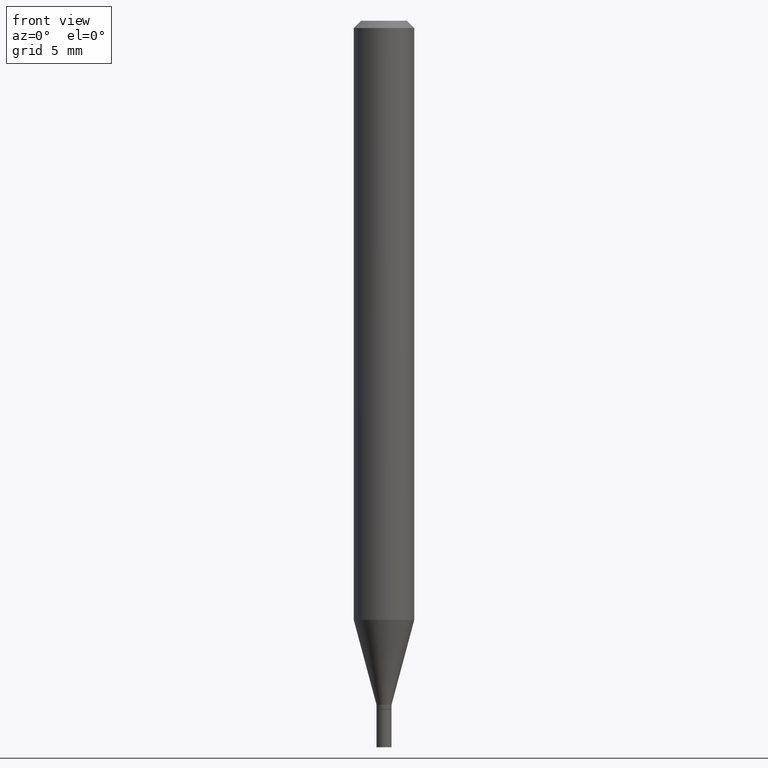
[diagram: clean part render]
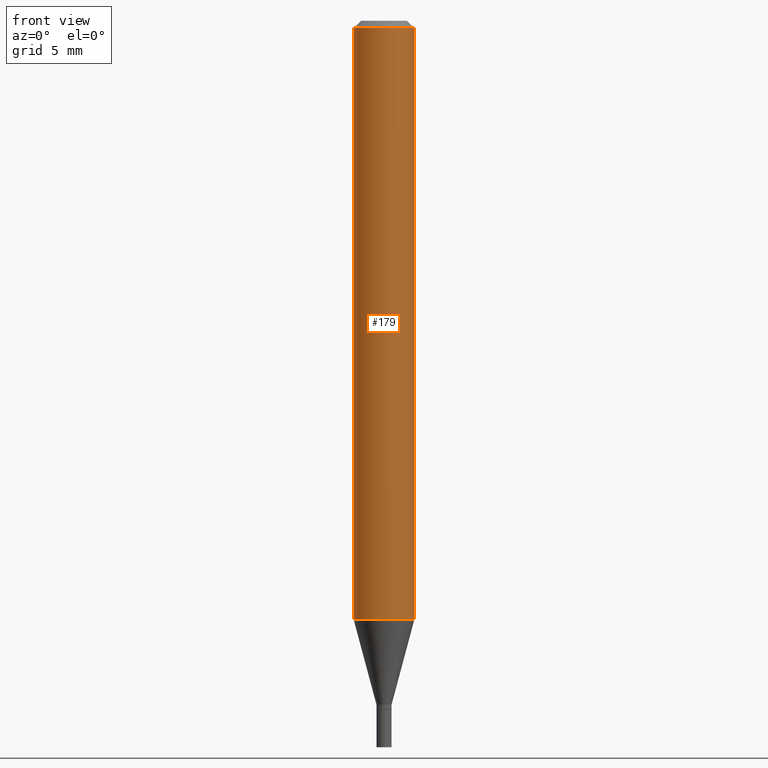
[diagram: same view with one face highlighted and labeled with its STEP entity id]
A machine part, front view. The second image highlights one B-rep face of the part: STEP entity #179.
In plain terms, the highlighted cylindrical surface (edge-blend (fillet) strip) has radius 1.5875 mm, axis along (-0, 0, 1).
Its self-contained STEP definition (entity closure, byte-faithful):
#17 = CYLINDRICAL_SURFACE ( 'NONE', #153, 0.06250000000000001388 ) ;
#39 = VERTEX_POINT ( 'NONE', #313 ) ;
#52 = VECTOR ( 'NONE', #277, 39.37007874015748143 ) ;
#58 = VERTEX_POINT ( 'NONE', #204 ) ;
#78 = CARTESIAN_POINT ( 'NONE',  ( 3.024963765565350895E-29, -4.318846558760209820E-15, -1.236966817125020102 ) ) ;
#87 = LINE ( 'NONE', #98, #434 ) ;
#89 = CARTESIAN_POINT ( 'NONE',  ( -0.06250000000000001388, 4.440892098500627148E-16, -3.074334431409316814E-30 ) ) ;
#98 = CARTESIAN_POINT ( 'NONE',  ( 0.06250000000000001388, -4.364351673553917187E-16, 3.047610484872460221E-30 ) ) ;
#100 = EDGE_LOOP ( 'NONE', ( #293, #175, #427, #436 ) ) ;
#126 = DIRECTION ( 'NONE',  ( -2.445468806185136597E-29, 3.491481338843145583E-15, 1.000000000000000000 ) ) ;
#153 = AXIS2_PLACEMENT_3D ( 'NONE', #162, #126, #224 ) ;
#162 = CARTESIAN_POINT ( 'NONE',  ( 0.000000000000000000, 0.000000000000000000, 0.000000000000000000 ) ) ;
#174 = DIRECTION ( 'NONE',  ( -2.445468806185136597E-29, 3.491481338843145583E-15, 1.000000000000000000 ) ) ;
#175 = ORIENTED_EDGE ( 'NONE', *, *, #303, .T. ) ;
#179 = ADVANCED_FACE ( 'NONE', ( #342 ), #17, .T. ) ;
#184 = DIRECTION ( 'NONE',  ( 1.000000000000000000, -6.982962677686262766E-15, 0.000000000000000000 ) ) ;
#193 = DIRECTION ( 'NONE',  ( -2.445468806185136877E-29, 3.491481338843145188E-15, 1.000000000000000000 ) ) ;
#201 = VERTEX_POINT ( 'NONE', #230 ) ;
#204 = CARTESIAN_POINT ( 'NONE',  ( -0.06250000000000002776, -1.741520179571366031E-15, -0.01499999999999999944 ) ) ;
#212 = LINE ( 'NONE', #89, #52 ) ;
#224 = DIRECTION ( 'NONE',  ( 1.000000000000000000, -6.982962677686265922E-15, 4.876176775795935232E-29 ) ) ;
#229 = EDGE_CURVE ( 'NONE', #39, #241, #87, .T. ) ;
#230 = CARTESIAN_POINT ( 'NONE',  ( -0.06250000000000000000, -3.874757348910146415E-15, -1.236966817125020102 ) ) ;
#241 = VERTEX_POINT ( 'NONE', #296 ) ;
#266 = CIRCLE ( 'NONE', #328, 0.06250000000000000000 ) ;
#271 = AXIS2_PLACEMENT_3D ( 'NONE', #282, #174, #460 ) ;
#277 = DIRECTION ( 'NONE',  ( -2.445468806185136877E-29, 3.491481338843145188E-15, 1.000000000000000000 ) ) ;
#282 = CARTESIAN_POINT ( 'NONE',  ( 3.668203209277705088E-31, -5.237222008264718399E-17, -0.01499999999999999944 ) ) ;
#290 = CIRCLE ( 'NONE', #271, 0.06250000000000001388 ) ;
#293 = ORIENTED_EDGE ( 'NONE', *, *, #337, .F. ) ;
#296 = CARTESIAN_POINT ( 'NONE',  ( 0.06250000000000001388, -4.888073874380389458E-16, -0.01499999999999999944 ) ) ;
#303 = EDGE_CURVE ( 'NONE', #201, #39, #266, .T. ) ;
#313 = CARTESIAN_POINT ( 'NONE',  ( 0.06250000000000000000, -4.755281726115601490E-15, -1.236966817125020102 ) ) ;
#328 = AXIS2_PLACEMENT_3D ( 'NONE', #78, #415, #184 ) ;
#337 = EDGE_CURVE ( 'NONE', #201, #58, #212, .T. ) ;
#342 = FACE_OUTER_BOUND ( 'NONE', #100, .T. ) ;
#415 = DIRECTION ( 'NONE',  ( -2.445468806185136597E-29, 3.491481338843145583E-15, 1.000000000000000000 ) ) ;
#427 = ORIENTED_EDGE ( 'NONE', *, *, #229, .T. ) ;
#434 = VECTOR ( 'NONE', #193, 39.37007874015748143 ) ;
#436 = ORIENTED_EDGE ( 'NONE', *, *, #439, .F. ) ;
#439 = EDGE_CURVE ( 'NONE', #58, #241, #290, .T. ) ;
#460 = DIRECTION ( 'NONE',  ( 1.000000000000000000, -6.982962677686267499E-15, 0.000000000000000000 ) ) ;